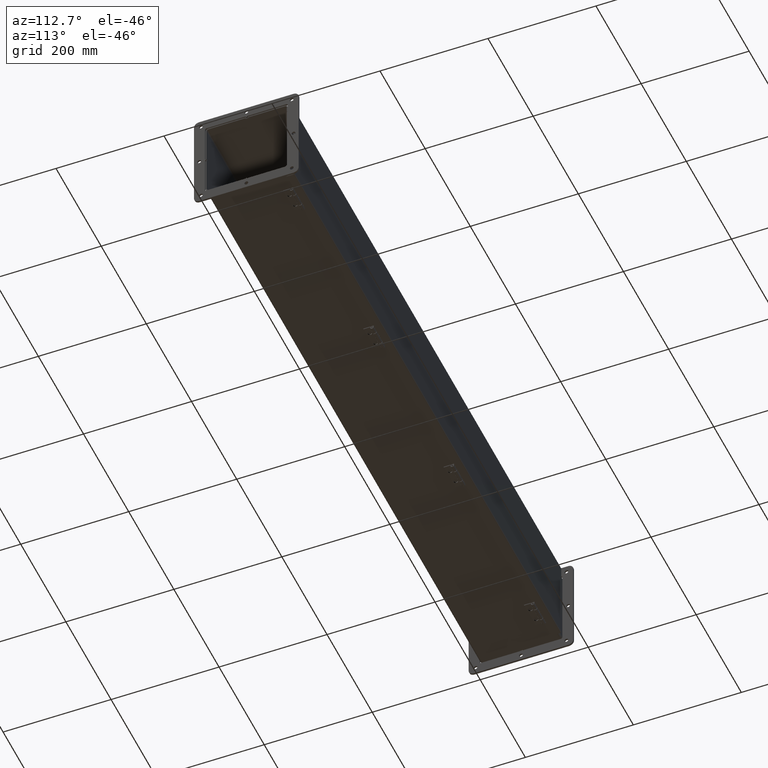
[diagram: clean part render]
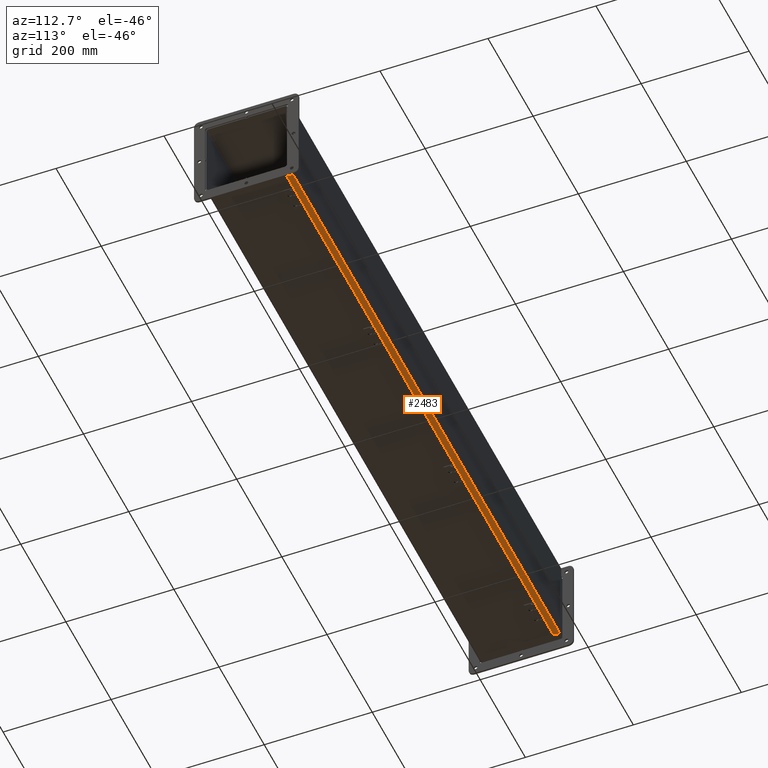
[diagram: same view with one face highlighted and labeled with its STEP entity id]
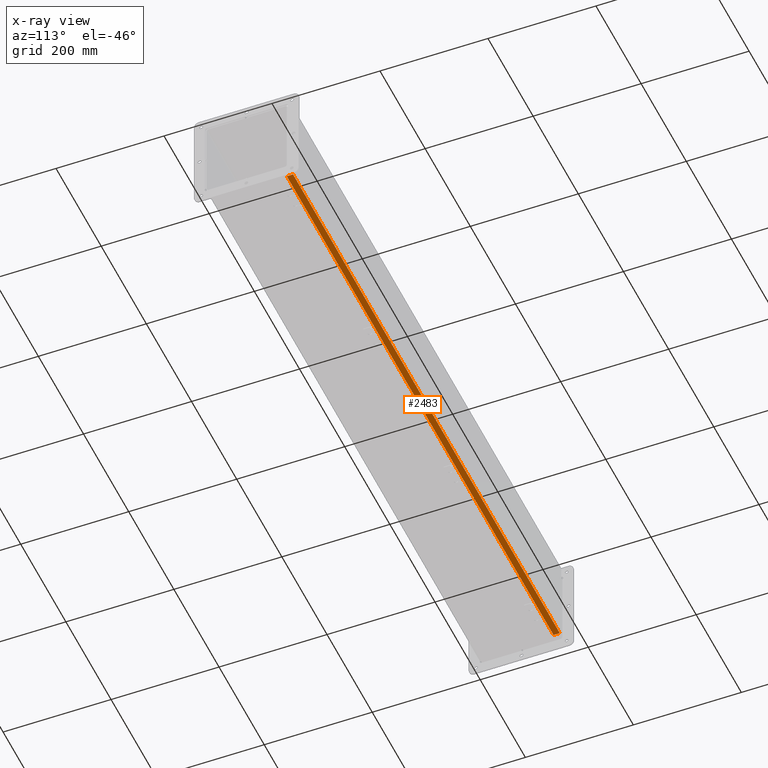
[diagram: x-ray of the same camera — body ghosted, the highlighted face saturated]
A machine part, auxiliary view. The second image highlights one B-rep face of the part: STEP entity #2483.
The next image is the same camera in x-ray: the body ghosted, the highlighted face saturated — about 0% of this face is hidden behind the body in this view.
In plain terms, the highlighted planar face has unit normal (0, -0, -1).
Its self-contained STEP definition (entity closure, byte-faithful):
#2116=CARTESIAN_POINT('',(46.5,6.312500000000004,-0.4885));
#2117=VERTEX_POINT('',#2116);
#2124=CARTESIAN_POINT('',(46.5,6.312500000000004,-0.03125000000097));
#2125=VERTEX_POINT('',#2124);
#2126=CARTESIAN_POINT('',(46.5,6.312500000000004,-0.03125));
#2127=DIRECTION('',(0.0,0.0,-1.0));
#2128=VECTOR('',#2127,0.45725);
#2129=LINE('',#2126,#2128);
#2130=EDGE_CURVE('',#2125,#2117,#2129,.T.);
#2266=CARTESIAN_POINT('',(-4.278838E-018,6.312500000000001,-0.031250000000001));
#2267=VERTEX_POINT('',#2266);
#2275=CARTESIAN_POINT('',(-1.819776E-033,6.312500000000001,-0.4885));
#2276=VERTEX_POINT('',#2275);
#2277=CARTESIAN_POINT('',(-1.819776E-033,6.312500000000001,-0.4885));
#2278=DIRECTION('',(0.0,0.0,1.0));
#2279=VECTOR('',#2278,0.45725);
#2280=LINE('',#2277,#2279);
#2281=EDGE_CURVE('',#2276,#2267,#2280,.T.);
#2462=CARTESIAN_POINT('',(0.0,6.312500000000001,0.074));
#2463=DIRECTION('',(0.0,1.0,0.0));
#2464=DIRECTION('',(0.0,0.0,1.0));
#2465=AXIS2_PLACEMENT_3D('',#2462,#2463,#2464);
#2466=PLANE('',#2465);
#2467=CARTESIAN_POINT('',(46.5,6.312500000000974,-0.03125000000097));
#2468=DIRECTION('',(-1.0,0.0,0.0));
#2469=VECTOR('',#2468,46.5);
#2470=LINE('',#2467,#2469);
#2471=EDGE_CURVE('',#2125,#2267,#2470,.T.);
#2472=ORIENTED_EDGE('',*,*,#2471,.F.);
#2473=ORIENTED_EDGE('',*,*,#2130,.T.);
#2474=CARTESIAN_POINT('',(-1.819776E-033,6.312500000000001,-0.4885));
#2475=DIRECTION('',(1.0,0.0,0.0));
#2476=VECTOR('',#2475,46.5);
#2477=LINE('',#2474,#2476);
#2478=EDGE_CURVE('',#2276,#2117,#2477,.T.);
#2479=ORIENTED_EDGE('',*,*,#2478,.F.);
#2480=ORIENTED_EDGE('',*,*,#2281,.T.);
#2481=EDGE_LOOP('',(#2472,#2473,#2479,#2480));
#2482=FACE_OUTER_BOUND('',#2481,.T.);
#2483=ADVANCED_FACE('',(#2482),#2466,.T.);